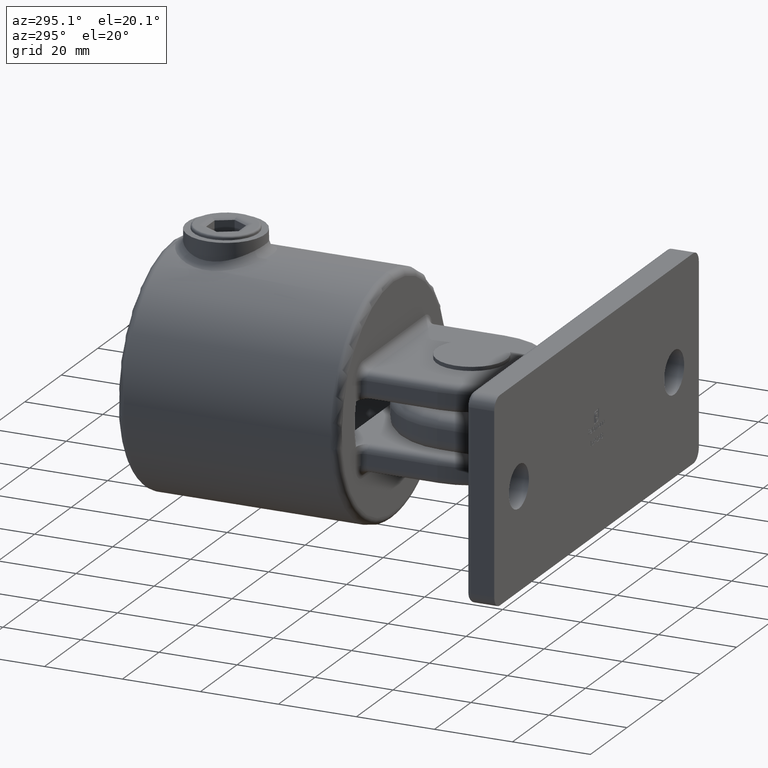
[diagram: clean part render]
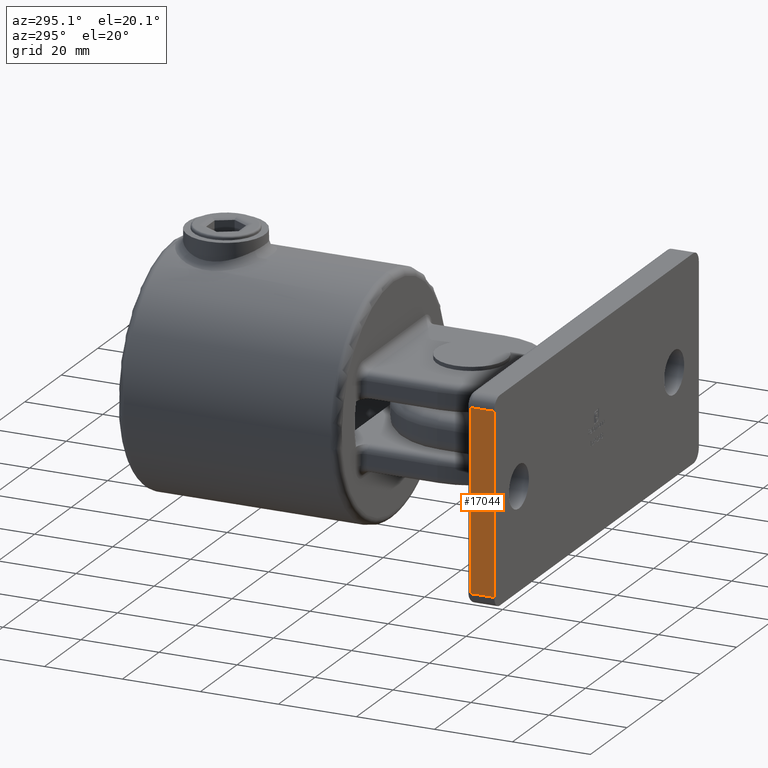
[diagram: same view with one face highlighted and labeled with its STEP entity id]
A machine part, auxiliary view. The second image highlights one B-rep face of the part: STEP entity #17044.
In plain terms, the highlighted planar face has unit normal (1, 0, 0).
Its self-contained STEP definition (entity closure, byte-faithful):
#263 = EDGE_CURVE ( 'NONE', #10670, #862, #13626, .T. ) ;
#862 = VERTEX_POINT ( 'NONE', #14662 ) ;
#920 = VECTOR ( 'NONE', #1611, 1000.000000000000000 ) ;
#1053 = VECTOR ( 'NONE', #11528, 1000.000000000000000 ) ;
#1611 = DIRECTION ( 'NONE',  ( 0.000000000000000000, -1.000000000000000000, 0.000000000000000000 ) ) ;
#2211 = PLANE ( 'NONE',  #10204 ) ;
#2426 = ORIENTED_EDGE ( 'NONE', *, *, #15241, .T. ) ;
#2545 = EDGE_CURVE ( 'NONE', #14528, #16536, #3724, .T. ) ;
#3530 = DIRECTION ( 'NONE',  ( 0.000000000000000000, 0.000000000000000000, -1.000000000000000000 ) ) ;
#3724 = LINE ( 'NONE', #13159, #16063 ) ;
#3930 = DIRECTION ( 'NONE',  ( 0.000000000000000000, -0.000000000000000000, -1.000000000000000000 ) ) ;
#6503 = EDGE_CURVE ( 'NONE', #862, #14528, #9519, .T. ) ;
#6516 = VECTOR ( 'NONE', #12947, 1000.000000000000000 ) ;
#7121 = CARTESIAN_POINT ( 'NONE',  ( -56.00000000000001421, 7.000000000000000000, -23.00000000000000711 ) ) ;
#8765 = LINE ( 'NONE', #7121, #920 ) ;
#9519 = LINE ( 'NONE', #14341, #1053 ) ;
#9959 = FACE_OUTER_BOUND ( 'NONE', #10147, .T. ) ;
#10147 = EDGE_LOOP ( 'NONE', ( #12272, #16472, #2426, #11460 ) ) ;
#10204 = AXIS2_PLACEMENT_3D ( 'NONE', #15502, #12900, #3530 ) ;
#10670 = VERTEX_POINT ( 'NONE', #12778 ) ;
#11460 = ORIENTED_EDGE ( 'NONE', *, *, #263, .T. ) ;
#11528 = DIRECTION ( 'NONE',  ( -0.000000000000000000, 1.000000000000000000, -0.000000000000000000 ) ) ;
#12272 = ORIENTED_EDGE ( 'NONE', *, *, #6503, .T. ) ;
#12744 = CARTESIAN_POINT ( 'NONE',  ( -56.00000000000001421, 6.000000000000000000, -23.00000000000000711 ) ) ;
#12778 = CARTESIAN_POINT ( 'NONE',  ( -56.00000000000001421, 0.000000000000000000, -23.00000000000000711 ) ) ;
#12900 = DIRECTION ( 'NONE',  ( 1.000000000000000000, 0.000000000000000000, 0.000000000000000000 ) ) ;
#12947 = DIRECTION ( 'NONE',  ( 0.000000000000000000, 0.000000000000000000, 1.000000000000000000 ) ) ;
#13159 = CARTESIAN_POINT ( 'NONE',  ( -56.00000000000001421, 6.000000000000000000, -23.00000000000000711 ) ) ;
#13626 = LINE ( 'NONE', #15398, #6516 ) ;
#14341 = CARTESIAN_POINT ( 'NONE',  ( -56.00000000000001421, 7.000000000000000000, 22.99999999999999645 ) ) ;
#14528 = VERTEX_POINT ( 'NONE', #15744 ) ;
#14662 = CARTESIAN_POINT ( 'NONE',  ( -56.00000000000001421, 0.000000000000000000, 22.99999999999999645 ) ) ;
#15241 = EDGE_CURVE ( 'NONE', #16536, #10670, #8765, .T. ) ;
#15398 = CARTESIAN_POINT ( 'NONE',  ( -56.00000000000001421, 0.000000000000000000, -26.00000000000000711 ) ) ;
#15502 = CARTESIAN_POINT ( 'NONE',  ( -56.00000000000001421, 7.000000000000000000, -26.00000000000000711 ) ) ;
#15744 = CARTESIAN_POINT ( 'NONE',  ( -56.00000000000001421, 6.000000000000000000, 22.99999999999999645 ) ) ;
#16063 = VECTOR ( 'NONE', #3930, 1000.000000000000000 ) ;
#16472 = ORIENTED_EDGE ( 'NONE', *, *, #2545, .T. ) ;
#16536 = VERTEX_POINT ( 'NONE', #12744 ) ;
#17044 = ADVANCED_FACE ( 'NONE', ( #9959 ), #2211, .F. ) ;